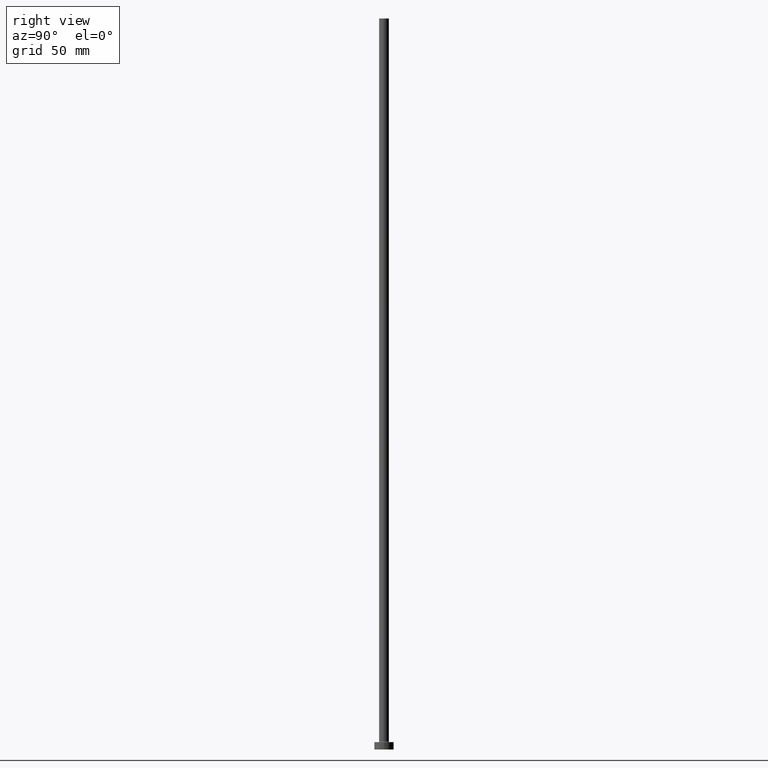
[diagram: clean part render]
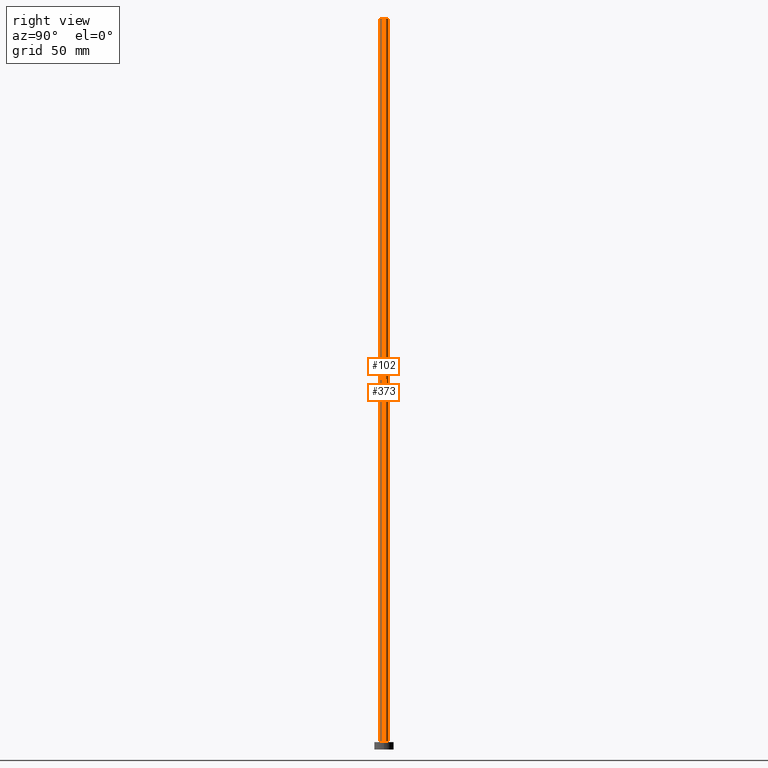
[diagram: same view with one multi-face feature highlighted, each face labeled with its STEP entity id]
A machine part, right view. The highlighted faces form ONE feature: a constant-radius fillet chain: 2 tangent blend faces with common blend radius 2 mm. The faces share edges in the B-rep.
Their STEP definitions:
[1] entity #102 (Cylinder):
#3 = EDGE_CURVE ( 'NONE', #393, #308, #415, .T. ) ;
#16 = DIRECTION ( 'NONE',  ( 0.000000000000000000, 0.000000000000000000, 1.000000000000000000 ) ) ;
#30 = CYLINDRICAL_SURFACE ( 'NONE', #400, 2.000000000000000000 ) ;
#43 = ORIENTED_EDGE ( 'NONE', *, *, #196, .F. ) ;
#44 = DIRECTION ( 'NONE',  ( 1.000000000000000000, 0.000000000000000000, 0.000000000000000000 ) ) ;
#46 = CARTESIAN_POINT ( 'NONE',  ( 2.000000000000000000, 2.449293598294706414E-16, 300.0000000000000000 ) ) ;
#78 = DIRECTION ( 'NONE',  ( 0.000000000000000000, 0.000000000000000000, 1.000000000000000000 ) ) ;
#83 = LINE ( 'NONE', #226, #316 ) ;
#102 = ADVANCED_FACE ( 'NONE', ( #379 ), #30, .T. ) ;
#131 = AXIS2_PLACEMENT_3D ( 'NONE', #405, #78, #156 ) ;
#156 = DIRECTION ( 'NONE',  ( 1.000000000000000000, 0.000000000000000000, 0.000000000000000000 ) ) ;
#161 = ORIENTED_EDGE ( 'NONE', *, *, #187, .F. ) ;
#167 = DIRECTION ( 'NONE',  ( -1.000000000000000000, 0.000000000000000000, 0.000000000000000000 ) ) ;
#173 = VECTOR ( 'NONE', #188, 1000.000000000000000 ) ;
#180 = EDGE_LOOP ( 'NONE', ( #161, #43, #451, #315 ) ) ;
#183 = CIRCLE ( 'NONE', #351, 2.000000000000000000 ) ;
#187 = EDGE_CURVE ( 'NONE', #230, #252, #83, .T. ) ;
#188 = DIRECTION ( 'NONE',  ( -0.000000000000000000, -0.000000000000000000, -1.000000000000000000 ) ) ;
#196 = EDGE_CURVE ( 'NONE', #393, #230, #183, .T. ) ;
#222 = DIRECTION ( 'NONE',  ( -0.000000000000000000, -0.000000000000000000, -1.000000000000000000 ) ) ;
#226 = CARTESIAN_POINT ( 'NONE',  ( 2.000000000000000000, 2.449293598294706414E-16, 300.0000000000000000 ) ) ;
#230 = VERTEX_POINT ( 'NONE', #46 ) ;
#233 = CARTESIAN_POINT ( 'NONE',  ( -2.000000000000000000, 0.000000000000000000, 300.0000000000000000 ) ) ;
#235 = EDGE_CURVE ( 'NONE', #308, #252, #366, .T. ) ;
#252 = VERTEX_POINT ( 'NONE', #440 ) ;
#261 = CARTESIAN_POINT ( 'NONE',  ( -2.000000000000000000, 0.000000000000000000, 3.300000000000025135 ) ) ;
#293 = CARTESIAN_POINT ( 'NONE',  ( -2.000000000000000000, 0.000000000000000000, 300.0000000000000000 ) ) ;
#303 = CARTESIAN_POINT ( 'NONE',  ( 0.000000000000000000, 0.000000000000000000, 300.0000000000000000 ) ) ;
#308 = VERTEX_POINT ( 'NONE', #261 ) ;
#315 = ORIENTED_EDGE ( 'NONE', *, *, #235, .T. ) ;
#316 = VECTOR ( 'NONE', #222, 1000.000000000000000 ) ;
#338 = DIRECTION ( 'NONE',  ( -0.000000000000000000, -0.000000000000000000, -1.000000000000000000 ) ) ;
#351 = AXIS2_PLACEMENT_3D ( 'NONE', #359, #16, #44 ) ;
#359 = CARTESIAN_POINT ( 'NONE',  ( 0.000000000000000000, 0.000000000000000000, 300.0000000000000000 ) ) ;
#366 = CIRCLE ( 'NONE', #131, 2.000000000000000000 ) ;
#379 = FACE_OUTER_BOUND ( 'NONE', #180, .T. ) ;
#393 = VERTEX_POINT ( 'NONE', #293 ) ;
#400 = AXIS2_PLACEMENT_3D ( 'NONE', #303, #338, #167 ) ;
#405 = CARTESIAN_POINT ( 'NONE',  ( 0.000000000000000000, 0.000000000000000000, 3.300000000000025135 ) ) ;
#415 = LINE ( 'NONE', #233, #173 ) ;
#440 = CARTESIAN_POINT ( 'NONE',  ( 2.000000000000000000, 2.449293598294706414E-16, 3.300000000000025135 ) ) ;
#451 = ORIENTED_EDGE ( 'NONE', *, *, #3, .T. ) ;
[2] entity #373 (Cylinder):
#3 = EDGE_CURVE ( 'NONE', #393, #308, #415, .T. ) ;
#39 = CIRCLE ( 'NONE', #430, 2.000000000000000000 ) ;
#46 = CARTESIAN_POINT ( 'NONE',  ( 2.000000000000000000, 2.449293598294706414E-16, 300.0000000000000000 ) ) ;
#83 = LINE ( 'NONE', #226, #316 ) ;
#85 = CARTESIAN_POINT ( 'NONE',  ( 0.000000000000000000, 0.000000000000000000, 3.300000000000025135 ) ) ;
#92 = FACE_OUTER_BOUND ( 'NONE', #354, .T. ) ;
#94 = DIRECTION ( 'NONE',  ( -0.000000000000000000, -0.000000000000000000, -1.000000000000000000 ) ) ;
#114 = DIRECTION ( 'NONE',  ( 0.000000000000000000, 0.000000000000000000, 1.000000000000000000 ) ) ;
#119 = DIRECTION ( 'NONE',  ( 0.000000000000000000, 0.000000000000000000, 1.000000000000000000 ) ) ;
#125 = EDGE_CURVE ( 'NONE', #252, #308, #39, .T. ) ;
#127 = DIRECTION ( 'NONE',  ( -1.000000000000000000, 0.000000000000000000, 0.000000000000000000 ) ) ;
#159 = DIRECTION ( 'NONE',  ( 1.000000000000000000, 0.000000000000000000, 0.000000000000000000 ) ) ;
#163 = CARTESIAN_POINT ( 'NONE',  ( 0.000000000000000000, 0.000000000000000000, 300.0000000000000000 ) ) ;
#173 = VECTOR ( 'NONE', #188, 1000.000000000000000 ) ;
#187 = EDGE_CURVE ( 'NONE', #230, #252, #83, .T. ) ;
#188 = DIRECTION ( 'NONE',  ( -0.000000000000000000, -0.000000000000000000, -1.000000000000000000 ) ) ;
#221 = ORIENTED_EDGE ( 'NONE', *, *, #3, .F. ) ;
#222 = DIRECTION ( 'NONE',  ( -0.000000000000000000, -0.000000000000000000, -1.000000000000000000 ) ) ;
#226 = CARTESIAN_POINT ( 'NONE',  ( 2.000000000000000000, 2.449293598294706414E-16, 300.0000000000000000 ) ) ;
#230 = VERTEX_POINT ( 'NONE', #46 ) ;
#233 = CARTESIAN_POINT ( 'NONE',  ( -2.000000000000000000, 0.000000000000000000, 300.0000000000000000 ) ) ;
#252 = VERTEX_POINT ( 'NONE', #440 ) ;
#261 = CARTESIAN_POINT ( 'NONE',  ( -2.000000000000000000, 0.000000000000000000, 3.300000000000025135 ) ) ;
#263 = DIRECTION ( 'NONE',  ( 1.000000000000000000, 0.000000000000000000, 0.000000000000000000 ) ) ;
#267 = CYLINDRICAL_SURFACE ( 'NONE', #390, 2.000000000000000000 ) ;
#293 = CARTESIAN_POINT ( 'NONE',  ( -2.000000000000000000, 0.000000000000000000, 300.0000000000000000 ) ) ;
#308 = VERTEX_POINT ( 'NONE', #261 ) ;
#316 = VECTOR ( 'NONE', #222, 1000.000000000000000 ) ;
#320 = CARTESIAN_POINT ( 'NONE',  ( 0.000000000000000000, 0.000000000000000000, 300.0000000000000000 ) ) ;
#325 = ORIENTED_EDGE ( 'NONE', *, *, #410, .F. ) ;
#354 = EDGE_LOOP ( 'NONE', ( #325, #409, #454, #221 ) ) ;
#357 = CIRCLE ( 'NONE', #376, 2.000000000000000000 ) ;
#373 = ADVANCED_FACE ( 'NONE', ( #92 ), #267, .T. ) ;
#376 = AXIS2_PLACEMENT_3D ( 'NONE', #320, #114, #263 ) ;
#390 = AXIS2_PLACEMENT_3D ( 'NONE', #163, #94, #127 ) ;
#393 = VERTEX_POINT ( 'NONE', #293 ) ;
#409 = ORIENTED_EDGE ( 'NONE', *, *, #187, .T. ) ;
#410 = EDGE_CURVE ( 'NONE', #230, #393, #357, .T. ) ;
#415 = LINE ( 'NONE', #233, #173 ) ;
#430 = AXIS2_PLACEMENT_3D ( 'NONE', #85, #119, #159 ) ;
#440 = CARTESIAN_POINT ( 'NONE',  ( 2.000000000000000000, 2.449293598294706414E-16, 3.300000000000025135 ) ) ;
#454 = ORIENTED_EDGE ( 'NONE', *, *, #125, .T. ) ;